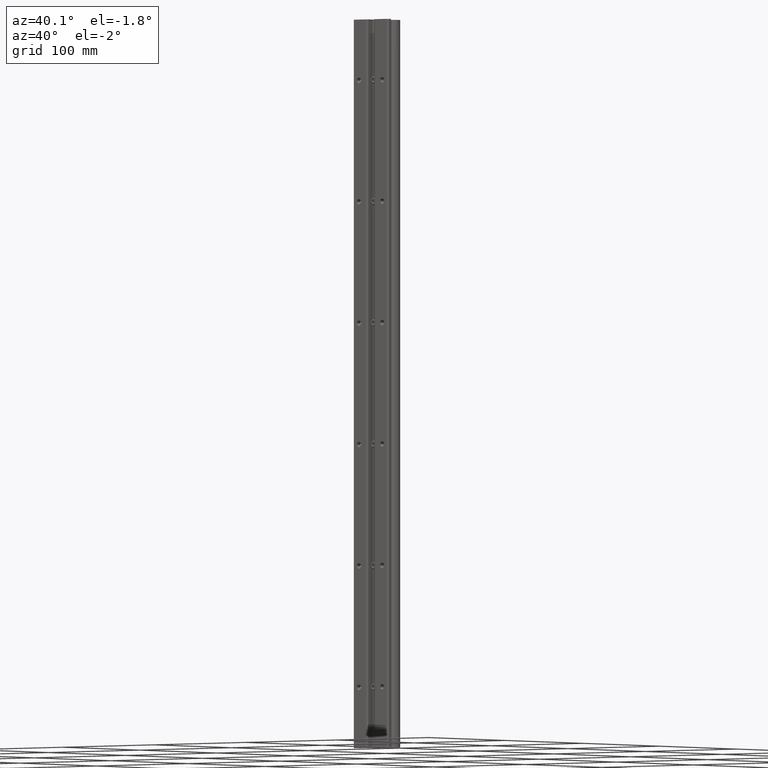
[diagram: clean part render]
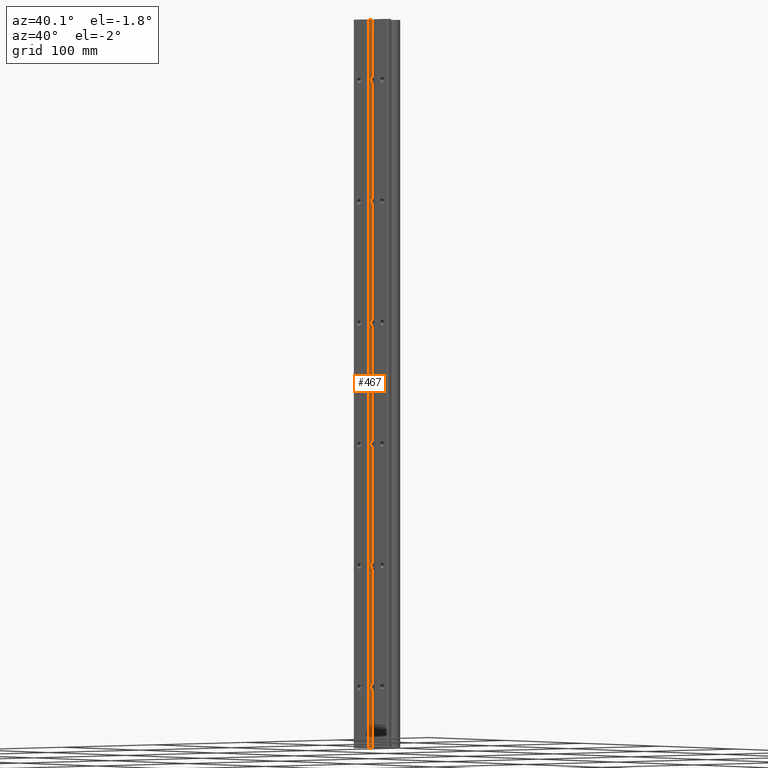
[diagram: same view with one face highlighted and labeled with its STEP entity id]
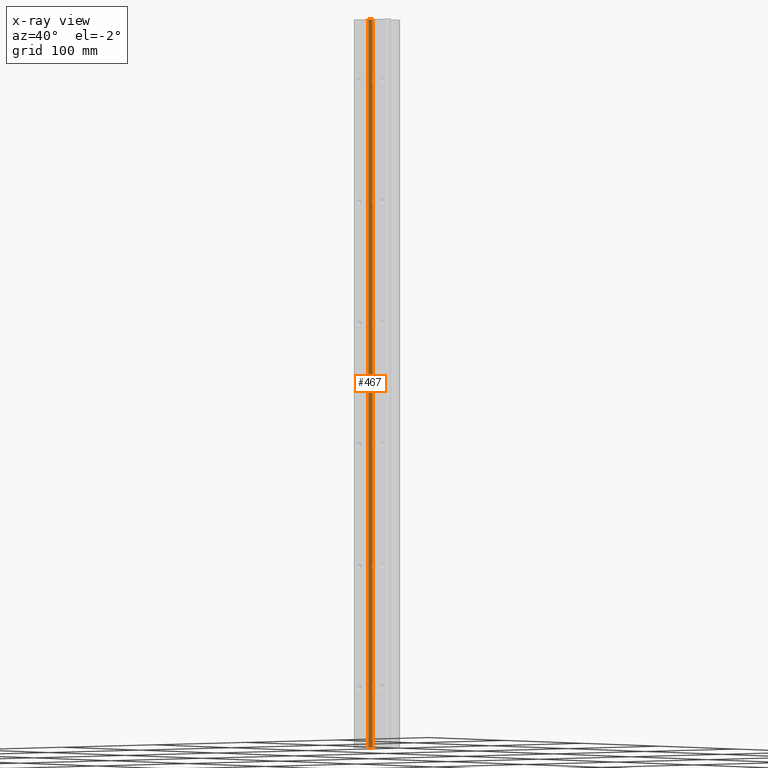
[diagram: x-ray of the same camera — body ghosted, the highlighted face saturated]
A machine part, auxiliary view. The second image highlights one B-rep face of the part: STEP entity #467.
The next image is the same camera in x-ray: the body ghosted, the highlighted face saturated — about 0% of this face is hidden behind the body in this view.
In plain terms, the highlighted planar face has unit normal (1, -0, 0).
Its self-contained STEP definition (entity closure, byte-faithful):
#467 = ADVANCED_FACE ( 'NONE', ( #2000 ), #1943, .T. ) ;
#469 = ORIENTED_EDGE ( 'NONE', *, *, #1358, .F. ) ;
#582 = DIRECTION ( 'NONE',  ( 0.000000000000000000, 0.000000000000000000, 1.000000000000000000 ) ) ;
#742 = VECTOR ( 'NONE', #4660, 39.37007874015748143 ) ;
#1358 = EDGE_CURVE ( 'NONE', #1792, #6218, #1599, .T. ) ;
#1484 = CARTESIAN_POINT ( 'NONE',  ( -0.1350000000000003419, 0.2549999999999998379, -25.75252057657289129 ) ) ;
#1599 = LINE ( 'NONE', #10951, #4001 ) ;
#1792 = VERTEX_POINT ( 'NONE', #2679 ) ;
#1943 = PLANE ( 'NONE',  #13148 ) ;
#2000 = FACE_OUTER_BOUND ( 'NONE', #12527, .T. ) ;
#2462 = ORIENTED_EDGE ( 'NONE', *, *, #4810, .T. ) ;
#2532 = ORIENTED_EDGE ( 'NONE', *, *, #13093, .F. ) ;
#2679 = CARTESIAN_POINT ( 'NONE',  ( -0.1350000000000005362, 0.06000000000000001166, -24.00000000000000355 ) ) ;
#2824 = VERTEX_POINT ( 'NONE', #12776 ) ;
#3211 = DIRECTION ( 'NONE',  ( -1.050710766793949698E-15, -1.000000000000000000, 0.000000000000000000 ) ) ;
#4001 = VECTOR ( 'NONE', #582, 39.37007874015748143 ) ;
#4660 = DIRECTION ( 'NONE',  ( 1.050710766793949698E-15, 1.000000000000000000, 0.000000000000000000 ) ) ;
#4718 = LINE ( 'NONE', #1484, #8520 ) ;
#4810 = EDGE_CURVE ( 'NONE', #2824, #12883, #4718, .T. ) ;
#5605 = CARTESIAN_POINT ( 'NONE',  ( -0.1350000000000005362, 0.06000000000000027534, 0.000000000000000000 ) ) ;
#6218 = VERTEX_POINT ( 'NONE', #11254 ) ;
#6221 = DIRECTION ( 'NONE',  ( 1.050710766793949698E-15, 1.000000000000000000, 0.000000000000000000 ) ) ;
#6354 = DIRECTION ( 'NONE',  ( 1.000000000000000000, -1.050710766793949698E-15, 0.000000000000000000 ) ) ;
#6485 = EDGE_CURVE ( 'NONE', #2824, #1792, #12821, .T. ) ;
#6959 = DIRECTION ( 'NONE',  ( 0.000000000000000000, 0.000000000000000000, 1.000000000000000000 ) ) ;
#7596 = CARTESIAN_POINT ( 'NONE',  ( -0.1350000000000005362, 0.06000000000000027534, -24.00000000000000355 ) ) ;
#8520 = VECTOR ( 'NONE', #6959, 39.37007874015748143 ) ;
#8556 = VECTOR ( 'NONE', #3211, 39.37007874015748143 ) ;
#9517 = CARTESIAN_POINT ( 'NONE',  ( -0.1350000000000003419, 0.2549999999999998379, -0.000000000000000000 ) ) ;
#9693 = ORIENTED_EDGE ( 'NONE', *, *, #6485, .F. ) ;
#10482 = CARTESIAN_POINT ( 'NONE',  ( -0.1350000000000005362, 0.06000000000000027534, -25.75252057657289129 ) ) ;
#10951 = CARTESIAN_POINT ( 'NONE',  ( -0.1350000000000005362, 0.06000000000000001166, -25.75252057657289129 ) ) ;
#11254 = CARTESIAN_POINT ( 'NONE',  ( -0.1350000000000005362, 0.06000000000000001166, 0.000000000000000000 ) ) ;
#11924 = LINE ( 'NONE', #5605, #742 ) ;
#12527 = EDGE_LOOP ( 'NONE', ( #9693, #2462, #2532, #469 ) ) ;
#12776 = CARTESIAN_POINT ( 'NONE',  ( -0.1350000000000003419, 0.2549999999999998379, -24.00000000000000355 ) ) ;
#12821 = LINE ( 'NONE', #7596, #8556 ) ;
#12883 = VERTEX_POINT ( 'NONE', #9517 ) ;
#13093 = EDGE_CURVE ( 'NONE', #6218, #12883, #11924, .T. ) ;
#13148 = AXIS2_PLACEMENT_3D ( 'NONE', #10482, #6354, #6221 ) ;